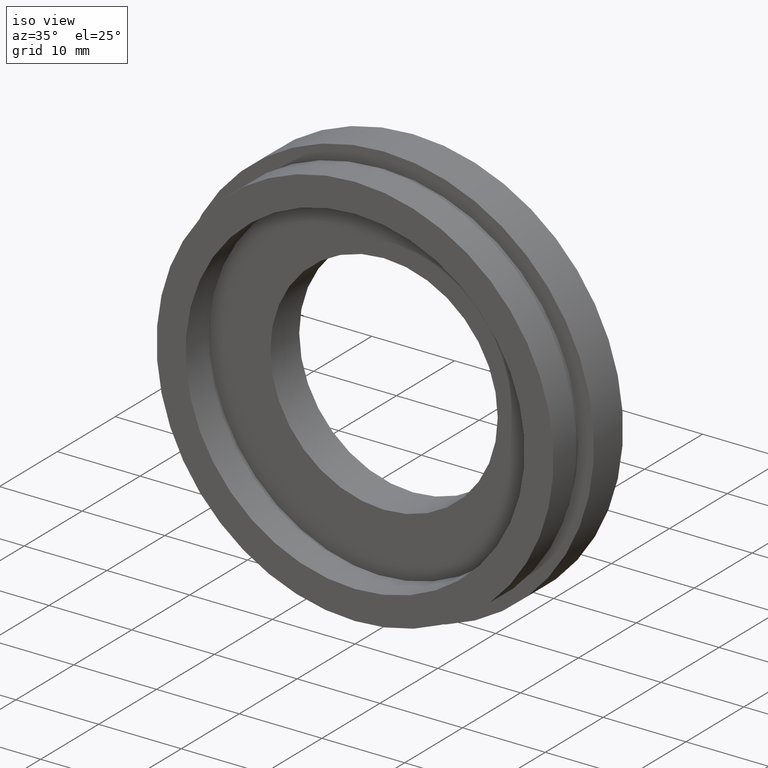
[diagram: clean part render]
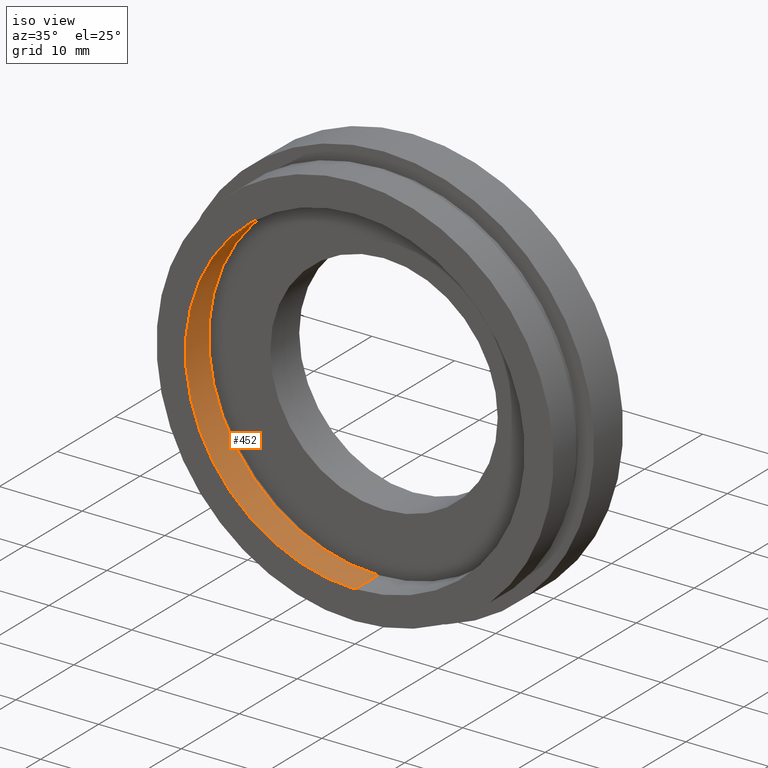
[diagram: same view with one face highlighted and labeled with its STEP entity id]
A machine part, iso view. The second image highlights one B-rep face of the part: STEP entity #452.
In plain terms, the highlighted cylindrical surface (partial cylindrical patch) has radius 20.5 mm, axis along (-0, 1, -0).
Its self-contained STEP definition (entity closure, byte-faithful):
#9 = DIRECTION ( 'NONE',  ( -0.0000000000000000000, 1.000000000000000000, -0.0000000000000000000 ) ) ;
#10 = CARTESIAN_POINT ( 'NONE',  ( 2.510525938252074500E-015, 17.41929831819392000, -20.50000000000000400 ) ) ;
#14 = CYLINDRICAL_SURFACE ( 'NONE', #404, 20.50000000000000400 ) ;
#16 = VERTEX_POINT ( 'NONE', #251 ) ;
#25 = VERTEX_POINT ( 'NONE', #339 ) ;
#38 = ORIENTED_EDGE ( 'NONE', *, *, #440, .F. ) ;
#51 = DIRECTION ( 'NONE',  ( -0.0000000000000000000, 1.000000000000000000, -0.0000000000000000000 ) ) ;
#65 = ORIENTED_EDGE ( 'NONE', *, *, #451, .F. ) ;
#68 = VERTEX_POINT ( 'NONE', #102 ) ;
#77 = DIRECTION ( 'NONE',  ( -0.0000000000000000000, 1.000000000000000000, -0.0000000000000000000 ) ) ;
#81 = AXIS2_PLACEMENT_3D ( 'NONE', #546, #77, #231 ) ;
#102 = CARTESIAN_POINT ( 'NONE',  ( 2.510525938252074500E-015, 0.0000000000000000000, -20.50000000000000000 ) ) ;
#106 = DIRECTION ( 'NONE',  ( -0.0000000000000000000, 1.000000000000000000, -0.0000000000000000000 ) ) ;
#124 = FACE_OUTER_BOUND ( 'NONE', #366, .T. ) ;
#149 = ORIENTED_EDGE ( 'NONE', *, *, #614, .T. ) ;
#151 = DIRECTION ( 'NONE',  ( 0.0000000000000000000, 0.0000000000000000000, 1.000000000000000000 ) ) ;
#201 = CARTESIAN_POINT ( 'NONE',  ( 0.0000000000000000000, 4.000000000000000000, 0.0000000000000000000 ) ) ;
#231 = DIRECTION ( 'NONE',  ( 0.0000000000000000000, 0.0000000000000000000, 1.000000000000000000 ) ) ;
#251 = CARTESIAN_POINT ( 'NONE',  ( 0.0000000000000000000, 0.0000000000000000000, 20.50000000000000000 ) ) ;
#258 = DIRECTION ( 'NONE',  ( 0.0000000000000000000, 0.0000000000000000000, 1.000000000000000000 ) ) ;
#307 = LINE ( 'NONE', #10, #462 ) ;
#339 = CARTESIAN_POINT ( 'NONE',  ( 0.0000000000000000000, 4.000000000000000000, 20.50000000000000400 ) ) ;
#366 = EDGE_LOOP ( 'NONE', ( #38, #436, #149, #65 ) ) ;
#404 = AXIS2_PLACEMENT_3D ( 'NONE', #506, #549, #258 ) ;
#409 = CARTESIAN_POINT ( 'NONE',  ( 0.0000000000000000000, 17.41929831819392000, 20.50000000000000400 ) ) ;
#436 = ORIENTED_EDGE ( 'NONE', *, *, #604, .T. ) ;
#440 = EDGE_CURVE ( 'NONE', #68, #16, #601, .T. ) ;
#450 = CIRCLE ( 'NONE', #532, 20.50000000000000400 ) ;
#451 = EDGE_CURVE ( 'NONE', #16, #25, #456, .T. ) ;
#452 = ADVANCED_FACE ( 'NONE', ( #124 ), #14, .F. ) ;
#456 = LINE ( 'NONE', #409, #609 ) ;
#462 = VECTOR ( 'NONE', #9, 1000.000000000000000 ) ;
#489 = VERTEX_POINT ( 'NONE', #603 ) ;
#506 = CARTESIAN_POINT ( 'NONE',  ( 0.0000000000000000000, 17.41929831819392000, 0.0000000000000000000 ) ) ;
#532 = AXIS2_PLACEMENT_3D ( 'NONE', #201, #106, #151 ) ;
#546 = CARTESIAN_POINT ( 'NONE',  ( 0.0000000000000000000, 0.0000000000000000000, 0.0000000000000000000 ) ) ;
#549 = DIRECTION ( 'NONE',  ( -0.0000000000000000000, 1.000000000000000000, -0.0000000000000000000 ) ) ;
#601 = CIRCLE ( 'NONE', #81, 20.50000000000000000 ) ;
#603 = CARTESIAN_POINT ( 'NONE',  ( 2.510525938252074500E-015, 4.000000000000000000, -20.50000000000000400 ) ) ;
#604 = EDGE_CURVE ( 'NONE', #68, #489, #307, .T. ) ;
#609 = VECTOR ( 'NONE', #51, 1000.000000000000000 ) ;
#614 = EDGE_CURVE ( 'NONE', #489, #25, #450, .T. ) ;